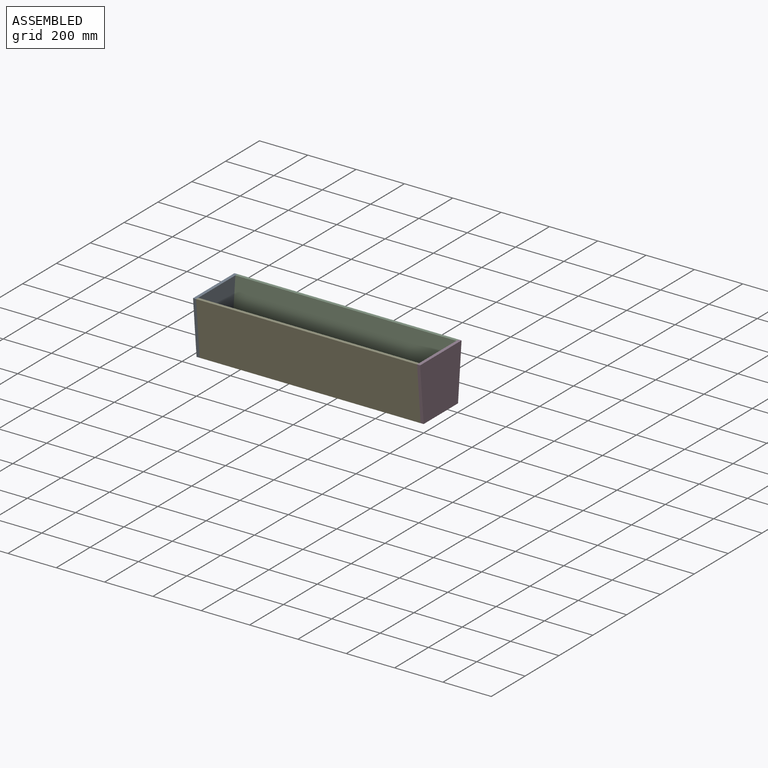
[diagram: assembled view]
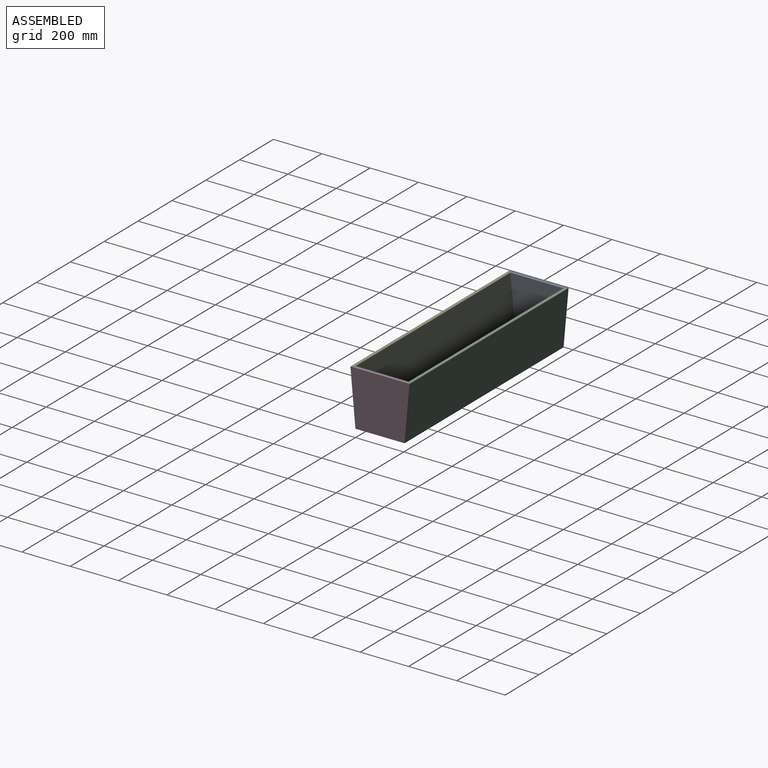
[diagram: assembled view, second angle]
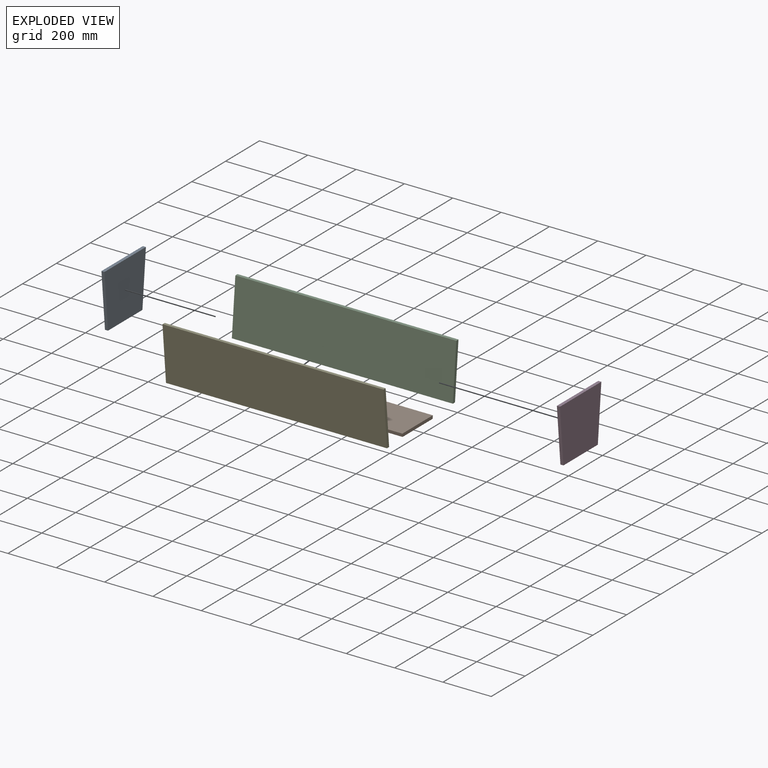
[diagram: exploded view]
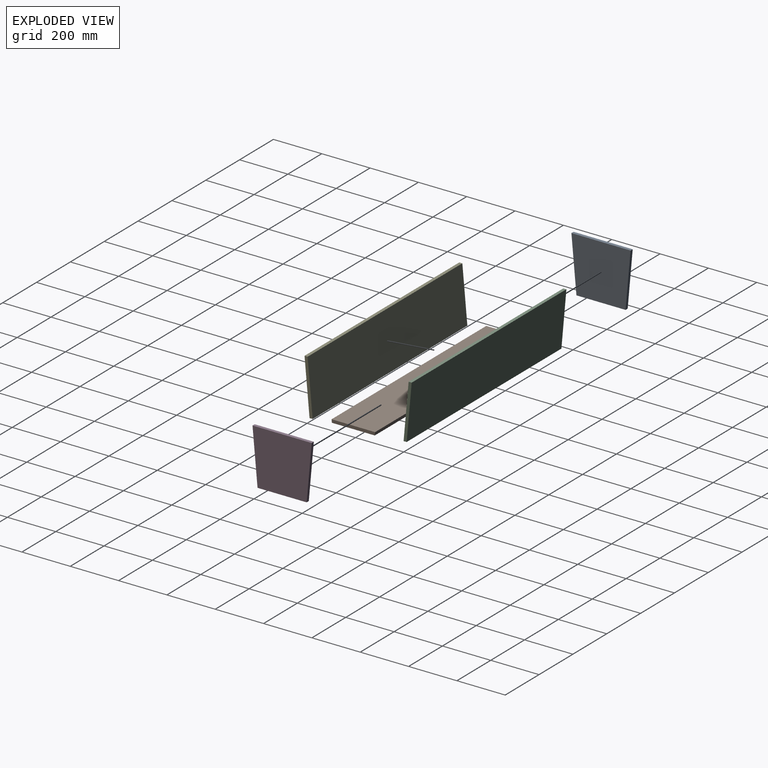
[diagram: exploded view, second angle]
ASSEMBLY  parts=5 mates=12
PART A: 6 faces, bbox 12.7x244.7x227.4 mm
  f0: plane 244.73x227.44mm, normal (-1,0,0), area 50938.7mm2, adj f1,f2,f3,f5
  f1: plane 227.44x20.76mm, normal (0,-1,-0.09), area 2900.5mm2, adj f0,f2,f4,f5
  f2: plane 203.2x12.7mm, normal (0,0,-1), area 2580.6mm2, adj f0,f1,f3,f4
  f3: plane 227.44x20.76mm, normal (0,1,-0.09), area 2900.5mm2, adj f0,f2,f4,f5
  f4: plane 244.73x227.44mm, normal (1,0,0), area 50938.7mm2, adj f1,f2,f3,f5
  f5: plane 244.73x12.7mm, normal (0,0,1), area 3108mm2, adj f0,f1,f3,f4
PART B: 6 faces, bbox 914.4x180x12.7 mm
  f0: plane 914.4x180.01mm, normal (0,0,1), area 164601mm2, adj f1,f3,f4,f5
  f1: plane 914.4x12.7mm, normal (0,-1,-0.09), area 11661.2mm2, adj f0,f2,f4,f5
  f2: plane 914.4x177.69mm, normal (0,0,-1), area 162480.7mm2, adj f1,f3,f4,f5
  f3: plane 914.4x12.7mm, normal (0,1,-0.09), area 11661.2mm2, adj f0,f2,f4,f5
  f4: plane 180.01x12.7mm, normal (1,0,0), area 2271.4mm2, adj f0,f1,f2,f3
  f5: plane 180.01x12.7mm, normal (-1,0,0), area 2271.4mm2, adj f0,f1,f2,f3
PART C: 6 faces, bbox 914.4x33.5x227.4 mm
  f0: plane 914.4x227.44mm, normal (0,1,-0.09), area 208838.7mm2, adj f1,f3,f4,f5
  f1: plane 914.4x12.75mm, normal (0,0,-1), area 11661.2mm2, adj f0,f2,f3,f4
  f2: plane 914.4x227.44mm, normal (0,-1,0.09), area 208838.7mm2, adj f1,f3,f4,f5
  f3: plane 227.44x33.52mm, normal (-1,0,0), area 2900.5mm2, adj f0,f1,f2,f5
  f4: plane 227.44x33.52mm, normal (1,0,0), area 2900.5mm2, adj f0,f1,f2,f5
  f5: plane 914.4x12.75mm, normal (0,0,1), area 11661.2mm2, adj f0,f2,f3,f4
PART D: 6 faces, bbox 12.7x244.7x227.4 mm
  f0: plane 227.44x20.76mm, normal (0,1,-0.09), area 2900.5mm2, adj f1,f3,f4,f5
  f1: plane 203.2x12.7mm, normal (0,0,-1), area 2580.6mm2, adj f0,f2,f3,f4
  f2: plane 227.44x20.76mm, normal (0,-1,-0.09), area 2900.5mm2, adj f1,f3,f4,f5
  f3: plane 244.73x227.44mm, normal (-1,0,0), area 50938.7mm2, adj f0,f1,f2,f5
  f4: plane 244.73x227.44mm, normal (1,0,0), area 50938.7mm2, adj f0,f1,f2,f5
  f5: plane 244.73x12.7mm, normal (0,0,1), area 3108mm2, adj f0,f2,f3,f4
PART E: 6 faces, bbox 914.4x33.5x227.4 mm
  f0: plane 914.4x227.44mm, normal (0,-1,-0.09), area 208838.7mm2, adj f1,f3,f4,f5
  f1: plane 914.4x12.75mm, normal (0,0,-1), area 11661.2mm2, adj f0,f2,f3,f4
  f2: plane 914.4x227.44mm, normal (0,1,0.09), area 208838.7mm2, adj f1,f3,f4,f5
  f3: plane 227.44x33.52mm, normal (1,0,0), area 2900.5mm2, adj f0,f1,f2,f5
  f4: plane 227.44x33.52mm, normal (-1,0,0), area 2900.5mm2, adj f0,f1,f2,f5
  f5: plane 914.4x12.75mm, normal (0,0,1), area 11661.2mm2, adj f0,f2,f3,f4
PLACE A t=(-939.8,101.6,-12.7)mm
PLACE B t=(-939.8,101.6,-12.7)mm
PLACE C t=(-939.8,101.6,-12.7)mm
PLACE D t=(-939.8,101.6,-12.7)mm
PLACE E t=(-939.8,101.6,-12.7)mm
MATE planar E.f2 <-> B.f1  axis (0,1,0.09) through (-469.9,2.37,101.02)mm
MATE planar B.f4 <-> C.f4  axis (1,0,0) through (-12.7,101.6,-6.34)mm
MATE planar A.f1 <-> E.f0  axis (0,-1,-0.09) through (-933.45,-10.38,101.02)mm
MATE planar D.f3 <-> B.f4  axis (-1,0,0) through (-12.7,101.6,104.54)mm
MATE planar D.f5 <-> E.f5  axis (0,0,1) through (-6.35,101.6,214.74)mm
MATE planar A.f5 <-> E.f5  axis (0,0,1) through (-933.45,101.6,214.74)mm
MATE planar D.f2 <-> E.f0  axis (0,-1,-0.09) through (-6.35,-10.38,101.02)mm
MATE planar E.f1 <-> B.f2  axis (0,0,-1) through (-469.9,6.38,-12.7)mm
MATE planar B.f2 <-> C.f1  axis (0,0,-1) through (-469.9,101.6,-12.7)mm
MATE planar A.f4 <-> B.f5  axis (1,0,0) through (-927.1,101.6,104.54)mm
MATE planar B.f3 <-> C.f2  axis (0,1,-0.09) through (-469.9,191.02,-6.35)mm
MATE planar E.f3 <-> B.f4  axis (1,0,0) through (-12.7,-4,101.02)mm
